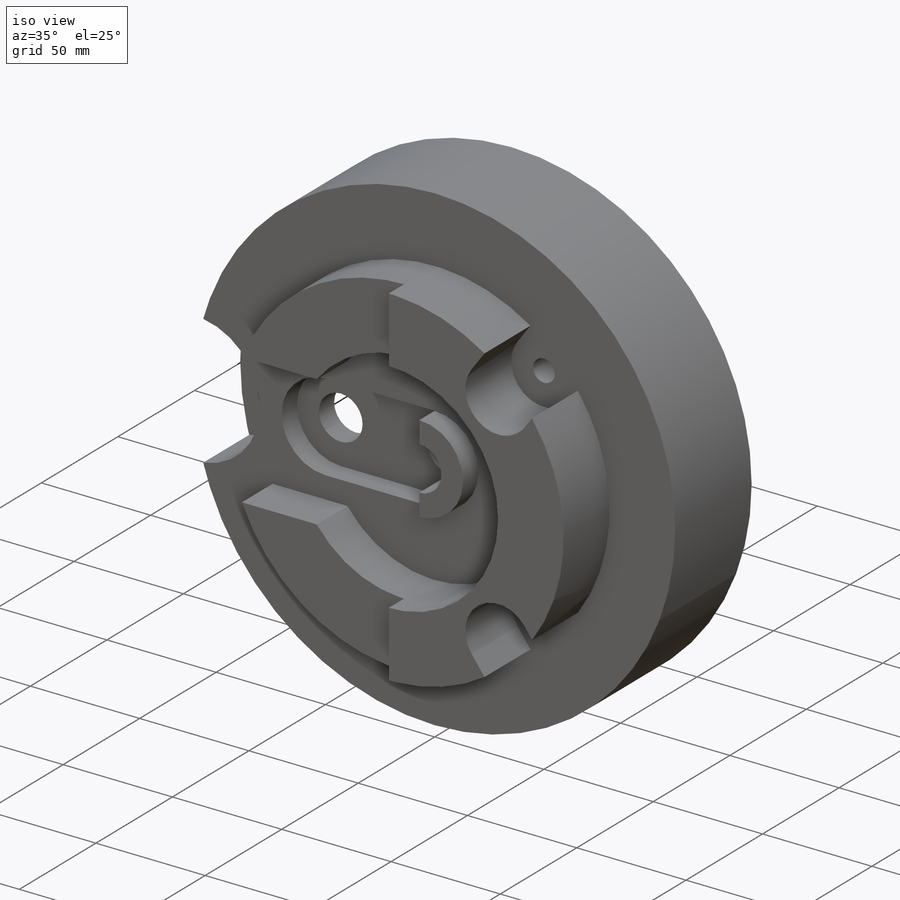
[diagram: iso view]
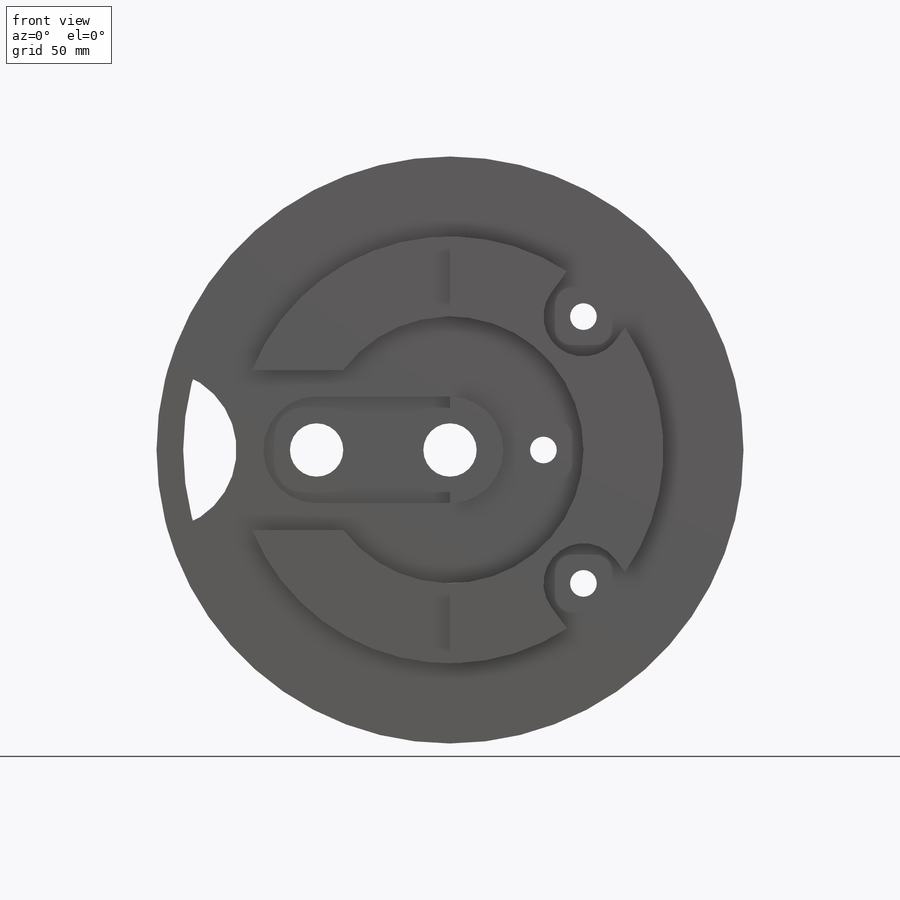
[diagram: front view]
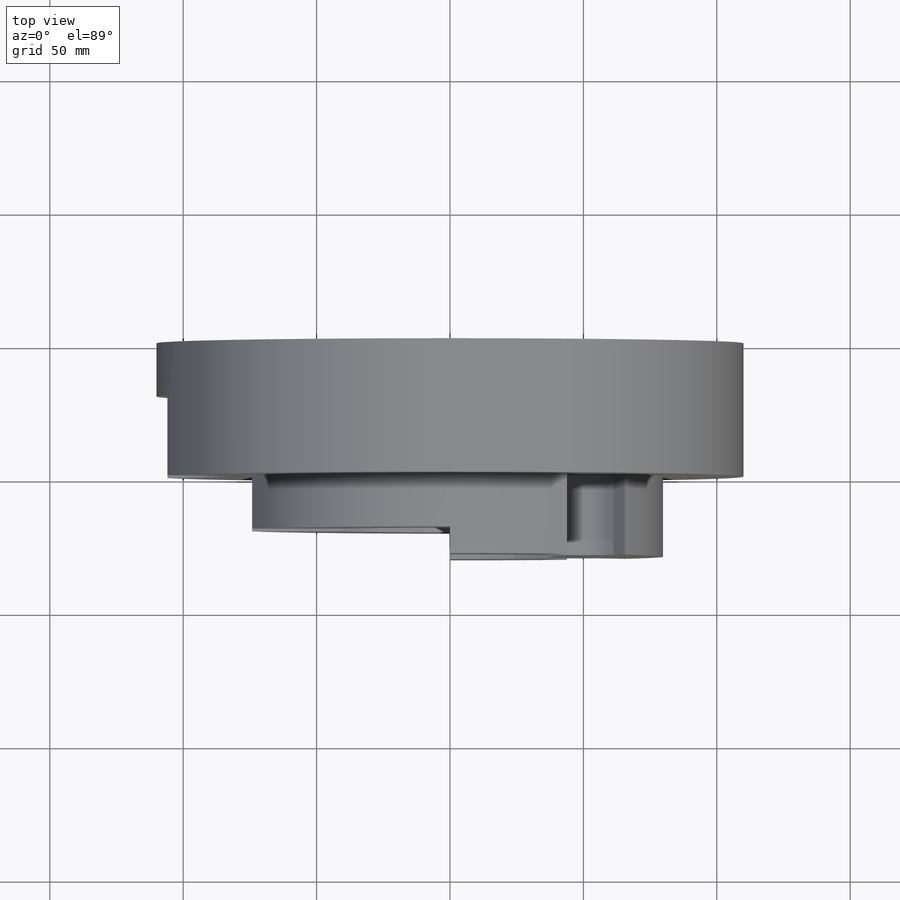
[diagram: top view]
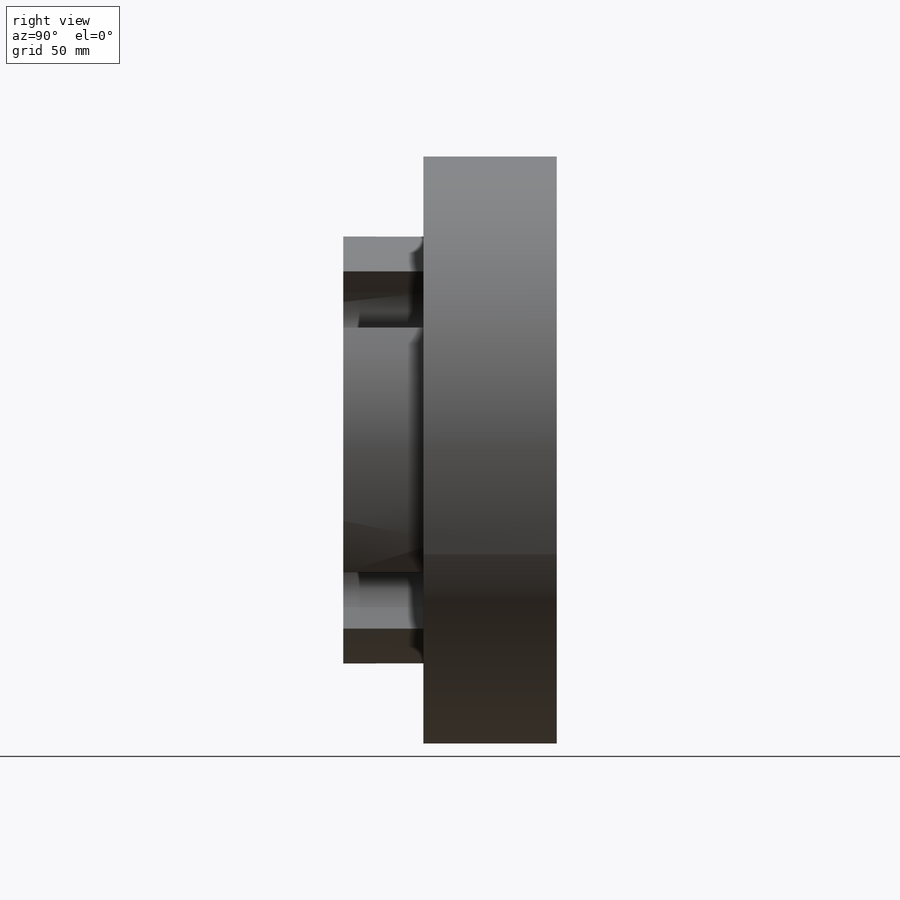
[diagram: right view]
SOLIDWORKS PART (.sldprt)
format: sldprt  version: not decoded by parser v0  size: 342,016 bytes
history: native  units: mm
features: sketch x12, cut_extrude x7, extrude x5, material x1 (+13 scaffold rows collapsed)
feature tree (38):
  scaffold x13  (default folders/planes/origin — collapsed)
  material  "Material <not specified>"
  sketch  "Sketch1"  dims[D1=220.0mm]
  extrude  "Boss-Extrude2"  Depth=50mm
  sketch  "Sketch3"  dims[D1=200.0mm]
  cut_extrude  "Cut-Extrude1"  Depth=30mm
  sketch  "Sketch4"  dims[D1=20.0mm D2=20.0mm D3=10.0mm D4=50.0mm D5=35.0mm]
  cut_extrude  "Cut-Extrude2"  Depth=20mm
  sketch  "Sketch5"  dims[c1.D1=20.0mm c1.D2=20.0mm c1.D3=50.0mm c1.D4=50.0mm c1.D5=10.0mm c1.D6=50.0mm c2.D5=10.0mm]
  cut_extrude  "Cut-Extrude3"  Depth=10mm
  sketch  "Sketch6"
  extrude  "Boss-Extrude3"  Depth=20mm
  sketch  "Sketch7"  dims[D1=30.0mm]
  cut_extrude  "Cut-Extrude6"  Depth=30mm
  sketch  "Sketch8"  dims[c1.D1=32.0mm c1.D2=30.0mm c1.D3=50.0mm c1.D4=~28.076928mm c2.D1=20.0mm c2.D4=20.0mm]
  extrude  "Boss-Extrude4"  Depth=20mm
  sketch  "Sketch9"  dims[D1=30.0mm D2=20.0mm D3=20.0mm D4=50.0mm D5=~34.161985mm]
  extrude  "Boss-Extrude5"  Depth=20mm
  sketch  "Sketch10"
  extrude  "Boss-Extrude6"  Depth=30mm
  sketch  "Sketch11"  dims[D1=10.0mm D2=10.0mm D7=15.0mm D10=15.0mm D3=50.0mm D4=50.0mm D5=50.0mm D6=50.0mm D8=10.0mm D9=7.0mm D11=10.0mm]
  cut_extrude  "Cut-Extrude8"  Depth=30mm
  sketch  "Sketch12"  dims[D1=10.0mm]
  cut_extrude  "Cut-Extrude9"  Depth=50mm
  sketch  "Sketch13"  dims[D1=10.0mm]
  cut_extrude  "Cut-Extrude10"  Depth=50mm
decode coverage: 22 of 24 modeling features carry decoded parameters
note: ~ marks probable driven/reference dimensions
note: suppression state not decoded; provenance and decode notes live in map.json
